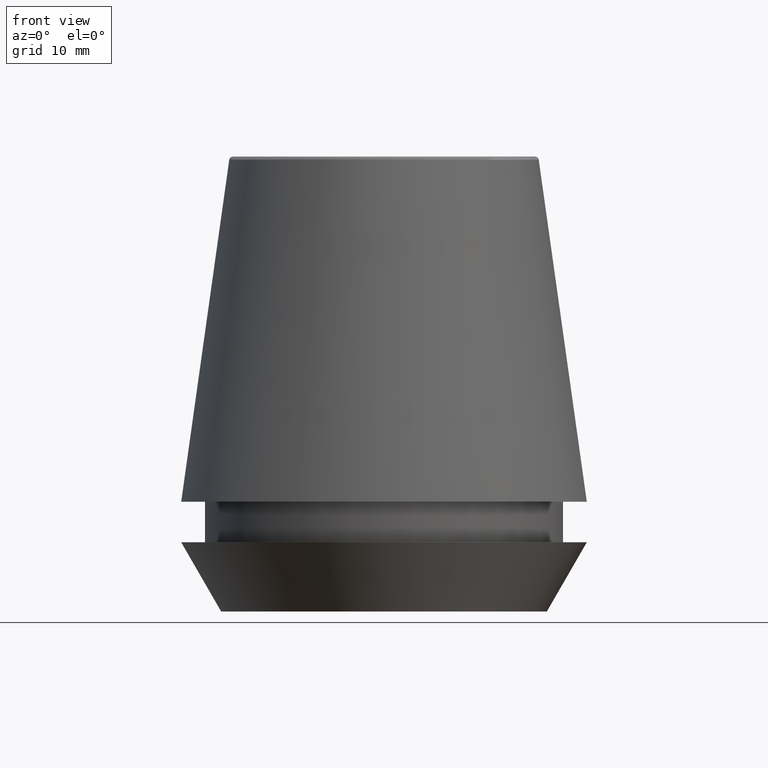
[diagram: clean part render]
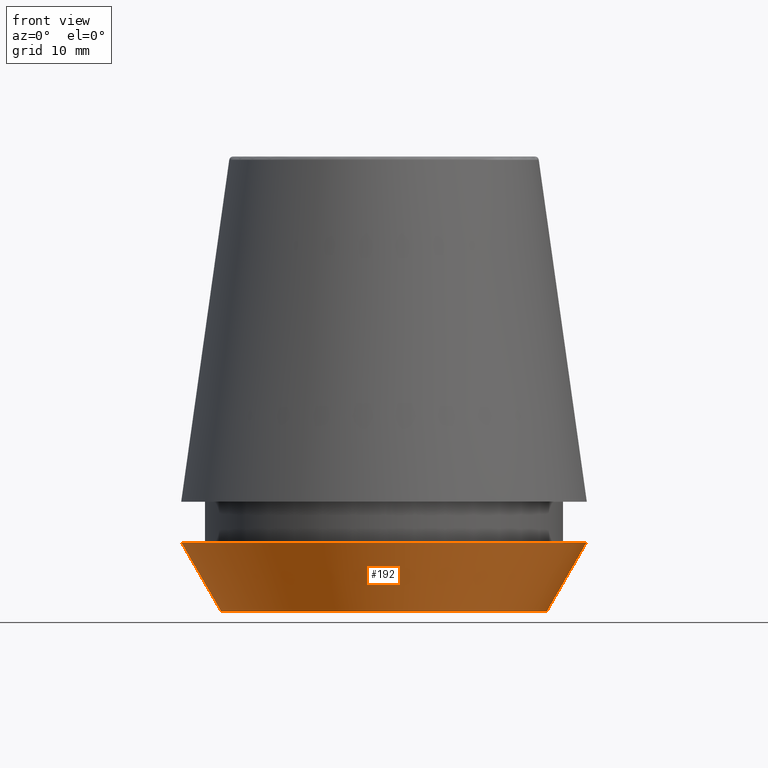
[diagram: same view with one face highlighted and labeled with its STEP entity id]
A machine part, front view. The second image highlights one B-rep face of the part: STEP entity #192.
In plain terms, the highlighted conical surface has half-angle 30 deg.
Its self-contained STEP definition (entity closure, byte-faithful):
#20 = CARTESIAN_POINT ( 'NONE',  ( 20.50000000000000000, 0.0000000000000000000, 7.000000000000006200 ) ) ;
#26 = VERTEX_POINT ( 'NONE', #110 ) ;
#34 = AXIS2_PLACEMENT_3D ( 'NONE', #94, #310, #119 ) ;
#35 = EDGE_CURVE ( 'NONE', #26, #193, #61, .T. ) ;
#40 = CARTESIAN_POINT ( 'NONE',  ( 16.45854811567268100, 0.0000000000000000000, 0.0000000000000000000 ) ) ;
#61 = LINE ( 'NONE', #372, #280 ) ;
#63 = DIRECTION ( 'NONE',  ( -0.4999999999999941700, 6.123233995736694500E-017, 0.8660254037844420400 ) ) ;
#78 = AXIS2_PLACEMENT_3D ( 'NONE', #369, #160, #198 ) ;
#94 = CARTESIAN_POINT ( 'NONE',  ( 0.0000000000000000000, 0.0000000000000000000, 0.0000000000000000000 ) ) ;
#110 = CARTESIAN_POINT ( 'NONE',  ( -16.45854811567268100, 2.263058382549599700E-015, 0.0000000000000000000 ) ) ;
#119 = DIRECTION ( 'NONE',  ( 1.000000000000000000, 0.0000000000000000000, 0.0000000000000000000 ) ) ;
#137 = EDGE_CURVE ( 'NONE', #204, #293, #156, .T. ) ;
#139 = CARTESIAN_POINT ( 'NONE',  ( 0.0000000000000000000, 0.0000000000000000000, 7.000000000000006200 ) ) ;
#147 = EDGE_CURVE ( 'NONE', #193, #293, #380, .T. ) ;
#156 = LINE ( 'NONE', #182, #379 ) ;
#160 = DIRECTION ( 'NONE',  ( -0.0000000000000000000, -0.0000000000000000000, 1.000000000000000000 ) ) ;
#165 = DIRECTION ( 'NONE',  ( 1.000000000000000000, 0.0000000000000000000, 0.0000000000000000000 ) ) ;
#169 = ORIENTED_EDGE ( 'NONE', *, *, #147, .F. ) ;
#182 = CARTESIAN_POINT ( 'NONE',  ( 16.45854811567268100, 0.0000000000000000000, 0.0000000000000000000 ) ) ;
#192 = ADVANCED_FACE ( 'NONE', ( #343 ), #238, .T. ) ;
#193 = VERTEX_POINT ( 'NONE', #231 ) ;
#195 = ORIENTED_EDGE ( 'NONE', *, *, #137, .T. ) ;
#198 = DIRECTION ( 'NONE',  ( 1.000000000000000000, 0.0000000000000000000, 0.0000000000000000000 ) ) ;
#204 = VERTEX_POINT ( 'NONE', #40 ) ;
#211 = ORIENTED_EDGE ( 'NONE', *, *, #220, .T. ) ;
#216 = ORIENTED_EDGE ( 'NONE', *, *, #35, .F. ) ;
#219 = CIRCLE ( 'NONE', #34, 16.45854811567268100 ) ;
#220 = EDGE_CURVE ( 'NONE', #26, #204, #219, .T. ) ;
#231 = CARTESIAN_POINT ( 'NONE',  ( -20.50000000000000000, 2.510525938252074100E-015, 7.000000000000006200 ) ) ;
#238 = CONICAL_SURFACE ( 'NONE', #78, 16.45854811567268100, 0.5235987755982921500 ) ;
#247 = AXIS2_PLACEMENT_3D ( 'NONE', #139, #373, #165 ) ;
#280 = VECTOR ( 'NONE', #63, 1000.000000000000000 ) ;
#293 = VERTEX_POINT ( 'NONE', #20 ) ;
#301 = EDGE_LOOP ( 'NONE', ( #216, #211, #195, #169 ) ) ;
#310 = DIRECTION ( 'NONE',  ( -0.0000000000000000000, -0.0000000000000000000, 1.000000000000000000 ) ) ;
#319 = DIRECTION ( 'NONE',  ( 0.4999999999999941700, 0.0000000000000000000, 0.8660254037844420400 ) ) ;
#343 = FACE_OUTER_BOUND ( 'NONE', #301, .T. ) ;
#369 = CARTESIAN_POINT ( 'NONE',  ( 0.0000000000000000000, 0.0000000000000000000, 0.0000000000000000000 ) ) ;
#372 = CARTESIAN_POINT ( 'NONE',  ( -16.45854811567268100, 2.015590826847124800E-015, 0.0000000000000000000 ) ) ;
#373 = DIRECTION ( 'NONE',  ( -0.0000000000000000000, -0.0000000000000000000, 1.000000000000000000 ) ) ;
#379 = VECTOR ( 'NONE', #319, 1000.000000000000000 ) ;
#380 = CIRCLE ( 'NONE', #247, 20.50000000000000000 ) ;